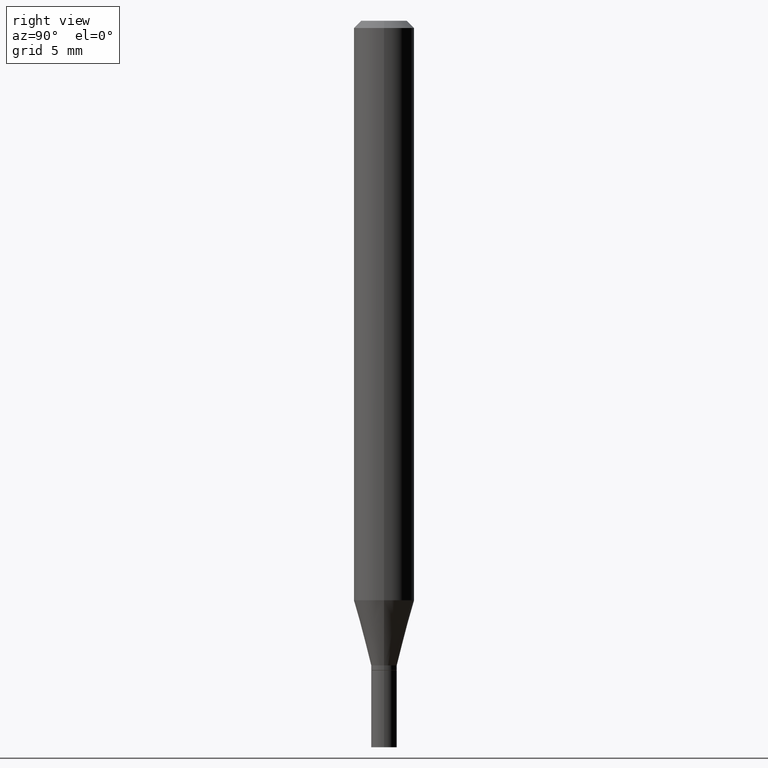
[diagram: clean part render]
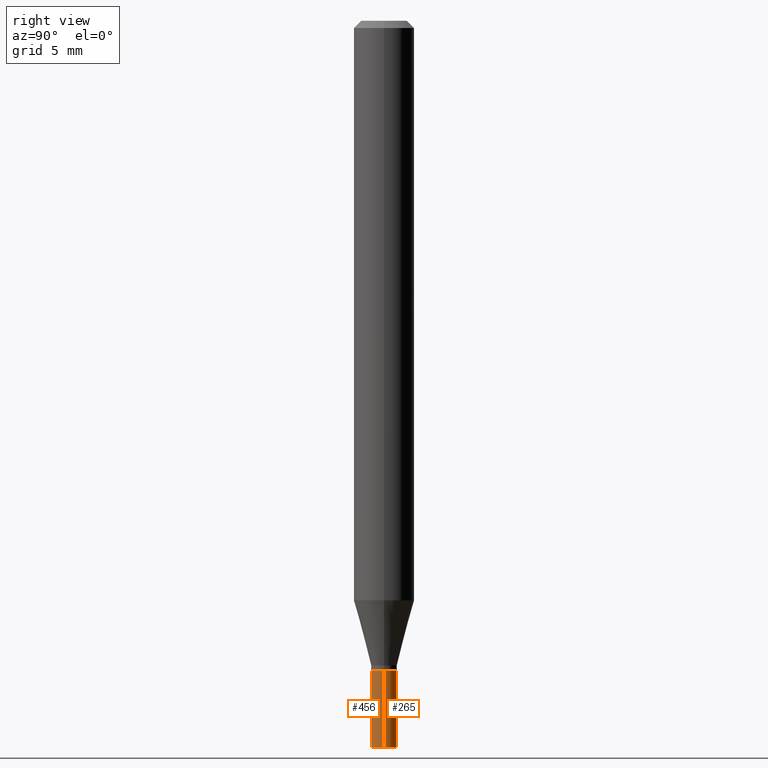
[diagram: same view with one multi-face feature highlighted, each face labeled with its STEP entity id]
A machine part, right view. The highlighted faces form ONE feature: a constant-radius fillet chain: 2 tangent blend faces with common blend radius 0.6731 mm. The faces share edges in the B-rep.
Their STEP definitions:
[1] entity #456 (Cylinder):
#8 = EDGE_CURVE ( 'NONE', #216, #94, #353, .T. ) ;
#16 = LINE ( 'NONE', #441, #304 ) ;
#26 = LINE ( 'NONE', #169, #167 ) ;
#54 = ORIENTED_EDGE ( 'NONE', *, *, #319, .F. ) ;
#61 = DIRECTION ( 'NONE',  ( 1.000000000000000000, -6.982962677686277755E-15, 0.000000000000000000 ) ) ;
#92 = AXIS2_PLACEMENT_3D ( 'NONE', #296, #459, #249 ) ;
#94 = VERTEX_POINT ( 'NONE', #163 ) ;
#97 = DIRECTION ( 'NONE',  ( -2.445468806185136877E-29, 3.491481338843145188E-15, 1.000000000000000000 ) ) ;
#99 = CARTESIAN_POINT ( 'NONE',  ( 3.668203209277704895E-29, -5.237222008264718177E-15, -1.500000000000000222 ) ) ;
#108 = CARTESIAN_POINT ( 'NONE',  ( 3.279373669094269136E-29, -4.682076475388659531E-15, -1.341000000000000192 ) ) ;
#141 = CARTESIAN_POINT ( 'NONE',  ( 0.02649999999999999925, -4.867124986347346010E-15, -1.341000000000000192 ) ) ;
#152 = CYLINDRICAL_SURFACE ( 'NONE', #92, 0.02649999999999999925 ) ;
#163 = CARTESIAN_POINT ( 'NONE',  ( 0.02649999999999999925, -5.422270519223404655E-15, -1.500000000000000222 ) ) ;
#167 = VECTOR ( 'NONE', #213, 39.37007874015748143 ) ;
#169 = CARTESIAN_POINT ( 'NONE',  ( -0.02649999999999999925, 1.882938249764265439E-16, -1.303517798917549926E-30 ) ) ;
#185 = FACE_OUTER_BOUND ( 'NONE', #349, .T. ) ;
#213 = DIRECTION ( 'NONE',  ( -2.445468806185136877E-29, 3.491481338843145188E-15, 1.000000000000000000 ) ) ;
#214 = ORIENTED_EDGE ( 'NONE', *, *, #277, .F. ) ;
#216 = VERTEX_POINT ( 'NONE', #436 ) ;
#220 = VERTEX_POINT ( 'NONE', #329 ) ;
#249 = DIRECTION ( 'NONE',  ( 1.000000000000000000, -6.982962677686266711E-15, 4.876176775795935793E-29 ) ) ;
#272 = DIRECTION ( 'NONE',  ( -2.445468806185136597E-29, 3.491481338843145583E-15, 1.000000000000000000 ) ) ;
#277 = EDGE_CURVE ( 'NONE', #216, #220, #26, .T. ) ;
#280 = VERTEX_POINT ( 'NONE', #141 ) ;
#296 = CARTESIAN_POINT ( 'NONE',  ( 0.000000000000000000, 0.000000000000000000, 0.000000000000000000 ) ) ;
#304 = VECTOR ( 'NONE', #97, 39.37007874015748143 ) ;
#307 = AXIS2_PLACEMENT_3D ( 'NONE', #99, #272, #415 ) ;
#311 = DIRECTION ( 'NONE',  ( -2.445468806185136597E-29, 3.491481338843145583E-15, 1.000000000000000000 ) ) ;
#319 = EDGE_CURVE ( 'NONE', #220, #280, #322, .T. ) ;
#322 = CIRCLE ( 'NONE', #426, 0.02649999999999999925 ) ;
#329 = CARTESIAN_POINT ( 'NONE',  ( -0.02649999999999999925, -4.771355416850261743E-15, -1.341000000000000192 ) ) ;
#337 = ORIENTED_EDGE ( 'NONE', *, *, #8, .T. ) ;
#349 = EDGE_LOOP ( 'NONE', ( #214, #337, #410, #54 ) ) ;
#353 = CIRCLE ( 'NONE', #307, 0.02649999999999999925 ) ;
#410 = ORIENTED_EDGE ( 'NONE', *, *, #445, .T. ) ;
#415 = DIRECTION ( 'NONE',  ( 1.000000000000000000, -6.982962677686277755E-15, 0.000000000000000000 ) ) ;
#426 = AXIS2_PLACEMENT_3D ( 'NONE', #108, #311, #61 ) ;
#436 = CARTESIAN_POINT ( 'NONE',  ( -0.02649999999999999925, -4.771355416850261743E-15, -1.500000000000000222 ) ) ;
#441 = CARTESIAN_POINT ( 'NONE',  ( 0.02649999999999999925, -1.850485109586860590E-16, 1.292186845585922957E-30 ) ) ;
#445 = EDGE_CURVE ( 'NONE', #94, #280, #16, .T. ) ;
#456 = ADVANCED_FACE ( 'NONE', ( #185 ), #152, .T. ) ;
#459 = DIRECTION ( 'NONE',  ( -2.445468806185136597E-29, 3.491481338843145583E-15, 1.000000000000000000 ) ) ;
[2] entity #265 (Cylinder):
#2 = DIRECTION ( 'NONE',  ( -2.445468806185136597E-29, 3.491481338843145583E-15, 1.000000000000000000 ) ) ;
#16 = LINE ( 'NONE', #441, #304 ) ;
#26 = LINE ( 'NONE', #169, #167 ) ;
#28 = CIRCLE ( 'NONE', #294, 0.02649999999999999925 ) ;
#32 = CARTESIAN_POINT ( 'NONE',  ( 0.000000000000000000, 0.000000000000000000, 0.000000000000000000 ) ) ;
#34 = ORIENTED_EDGE ( 'NONE', *, *, #277, .T. ) ;
#66 = ORIENTED_EDGE ( 'NONE', *, *, #416, .F. ) ;
#83 = DIRECTION ( 'NONE',  ( 1.000000000000000000, -6.982962677686277755E-15, 0.000000000000000000 ) ) ;
#94 = VERTEX_POINT ( 'NONE', #163 ) ;
#96 = DIRECTION ( 'NONE',  ( 1.000000000000000000, -6.982962677686266711E-15, 4.876176775795935793E-29 ) ) ;
#97 = DIRECTION ( 'NONE',  ( -2.445468806185136877E-29, 3.491481338843145188E-15, 1.000000000000000000 ) ) ;
#104 = CIRCLE ( 'NONE', #419, 0.02649999999999999925 ) ;
#139 = DIRECTION ( 'NONE',  ( -2.445468806185136597E-29, 3.491481338843145583E-15, 1.000000000000000000 ) ) ;
#141 = CARTESIAN_POINT ( 'NONE',  ( 0.02649999999999999925, -4.867124986347346010E-15, -1.341000000000000192 ) ) ;
#163 = CARTESIAN_POINT ( 'NONE',  ( 0.02649999999999999925, -5.422270519223404655E-15, -1.500000000000000222 ) ) ;
#166 = ORIENTED_EDGE ( 'NONE', *, *, #445, .F. ) ;
#167 = VECTOR ( 'NONE', #213, 39.37007874015748143 ) ;
#169 = CARTESIAN_POINT ( 'NONE',  ( -0.02649999999999999925, 1.882938249764265439E-16, -1.303517798917549926E-30 ) ) ;
#208 = ORIENTED_EDGE ( 'NONE', *, *, #348, .T. ) ;
#213 = DIRECTION ( 'NONE',  ( -2.445468806185136877E-29, 3.491481338843145188E-15, 1.000000000000000000 ) ) ;
#216 = VERTEX_POINT ( 'NONE', #436 ) ;
#220 = VERTEX_POINT ( 'NONE', #329 ) ;
#247 = EDGE_LOOP ( 'NONE', ( #208, #34, #66, #166 ) ) ;
#258 = CARTESIAN_POINT ( 'NONE',  ( 3.279373669094269136E-29, -4.682076475388659531E-15, -1.341000000000000192 ) ) ;
#265 = ADVANCED_FACE ( 'NONE', ( #463 ), #391, .T. ) ;
#269 = DIRECTION ( 'NONE',  ( -2.445468806185136597E-29, 3.491481338843145583E-15, 1.000000000000000000 ) ) ;
#277 = EDGE_CURVE ( 'NONE', #216, #220, #26, .T. ) ;
#280 = VERTEX_POINT ( 'NONE', #141 ) ;
#294 = AXIS2_PLACEMENT_3D ( 'NONE', #361, #2, #83 ) ;
#304 = VECTOR ( 'NONE', #97, 39.37007874015748143 ) ;
#329 = CARTESIAN_POINT ( 'NONE',  ( -0.02649999999999999925, -4.771355416850261743E-15, -1.341000000000000192 ) ) ;
#348 = EDGE_CURVE ( 'NONE', #94, #216, #28, .T. ) ;
#361 = CARTESIAN_POINT ( 'NONE',  ( 3.668203209277704895E-29, -5.237222008264718177E-15, -1.500000000000000222 ) ) ;
#369 = DIRECTION ( 'NONE',  ( 1.000000000000000000, -6.982962677686277755E-15, 0.000000000000000000 ) ) ;
#391 = CYLINDRICAL_SURFACE ( 'NONE', #439, 0.02649999999999999925 ) ;
#416 = EDGE_CURVE ( 'NONE', #280, #220, #104, .T. ) ;
#419 = AXIS2_PLACEMENT_3D ( 'NONE', #258, #269, #369 ) ;
#436 = CARTESIAN_POINT ( 'NONE',  ( -0.02649999999999999925, -4.771355416850261743E-15, -1.500000000000000222 ) ) ;
#439 = AXIS2_PLACEMENT_3D ( 'NONE', #32, #139, #96 ) ;
#441 = CARTESIAN_POINT ( 'NONE',  ( 0.02649999999999999925, -1.850485109586860590E-16, 1.292186845585922957E-30 ) ) ;
#445 = EDGE_CURVE ( 'NONE', #94, #280, #16, .T. ) ;
#463 = FACE_OUTER_BOUND ( 'NONE', #247, .T. ) ;